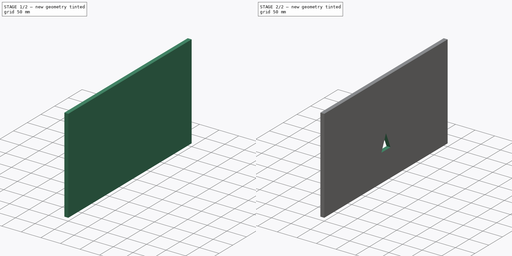
[diagram: build sequence overview — one tinted view per stage of 2, left to right]
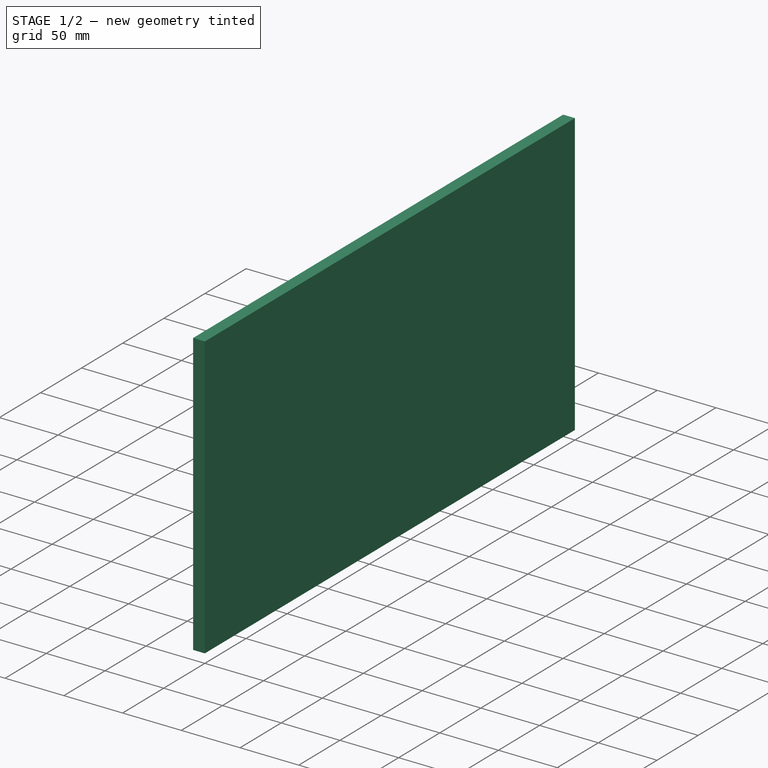
[diagram: stage 1 of 2 — iso view after this stage's code; geometry added in this stage tinted green]
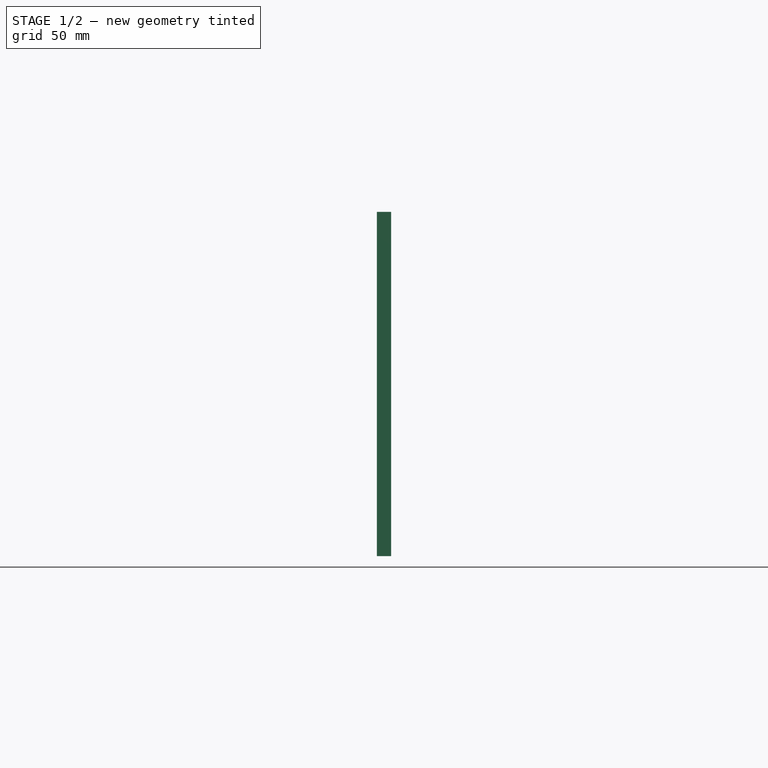
[diagram: stage 1 of 2 — front view after this stage's code; geometry added in this stage tinted green]
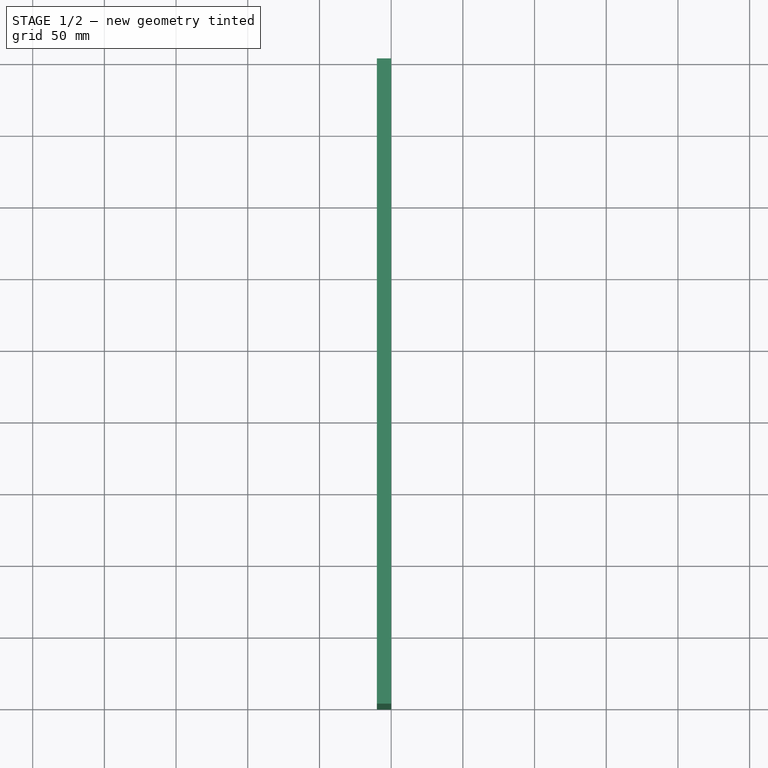
[diagram: stage 1 of 2 — top view after this stage's code; geometry added in this stage tinted green]
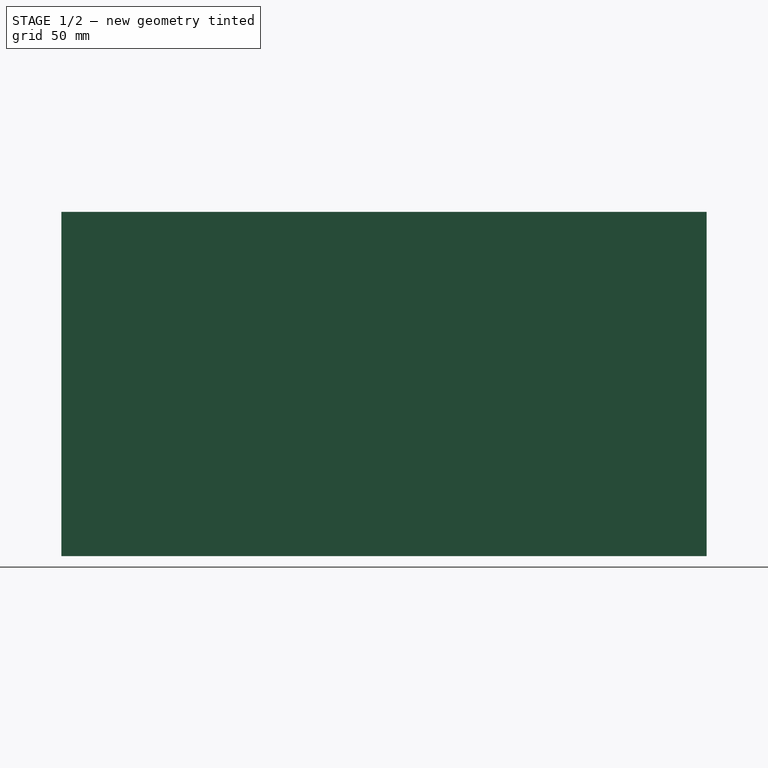
[diagram: stage 1 of 2 — right view after this stage's code; geometry added in this stage tinted green]
FCSTD DOCUMENT  (FreeCAD 0.19R24291 (Git))
Label: 500_Front_YZ_Flap
License: All rights reserved
LicenseURL: http://en.wikipedia.org/wiki/All_rights_reserved
objects: Sketcher::SketchObject×2, Spreadsheet::Sheet×1, PartDesign::Pad×1, PartDesign::Pocket×1, PartDesign::Body×1
note: 7 computed .brp shape members not serialized (recipe doc carries the construction recipe); baked Part::Feature solids carry a one-line shape summary decoded from their .brp

FEATURE [Sketcher::SketchObject] Sketch
  FullyConstrained = true
  MapMode = 4
  Placement = pos=(0,0,0) rot=(0.57735,0.57735,0.57735;2.0944rad)
  Support = -> [XY_Plane]
  expr: Constraints[5] = Spreadsheet.nZ
  expr: Constraints[6] = Spreadsheet.nY
  sketch-geometry (5):
    g0: LineSegment StartX=0 StartY=0 StartZ=0 EndX=0 EndY=240 EndZ=0
    g1: LineSegment StartX=450 StartY=0 StartZ=0 EndX=450 EndY=240 EndZ=0
    g2: LineSegment StartX=450 StartY=240 StartZ=0 EndX=0 EndY=240 EndZ=0
    g3: LineSegment StartX=225 StartY=0 StartZ=0 EndX=0 EndY=0 EndZ=0
    g4: LineSegment StartX=450 StartY=0 StartZ=0 EndX=225 EndY=0 EndZ=0
  constraints (14):
    c: Vertical(g0)
    c: Vertical(g1)
    c: Coincident(g2,g1)
    c: Coincident(g2,g0)
    c: Horizontal(g2)
    c: DistanceY(g1,g1) = 240
    c: DistanceX(g2,g2) = 450
    c: Coincident(g3,g0)
    c: Coincident(g4,g1)
    c: Horizontal(g4)
    c: Equal(g3,g4)
    c: Coincident(g4,g3)
    c: Horizontal(g3)
    c: Coincident(g0,g-1)
FEATURE [Spreadsheet::Sheet] Spreadsheet  label="xls"
  cells = B7=KEYBOARD FRONT; B8=Width; C8=nY; D8(nY)=450; B9=Height; C9=nZ; D9(nZ)=240; E9=F(T); B10=Thickness; C10=nT; D10(nT)=10
FEATURE [PartDesign::Pad] Pad
  AllowMultiFace = false
  Direction = (1,1,1)
  Length = 10
  Length2 = 100
  Profile = -> Sketch
  Reversed = true
  Type = 0
  expr: Length = Spreadsheet.nT
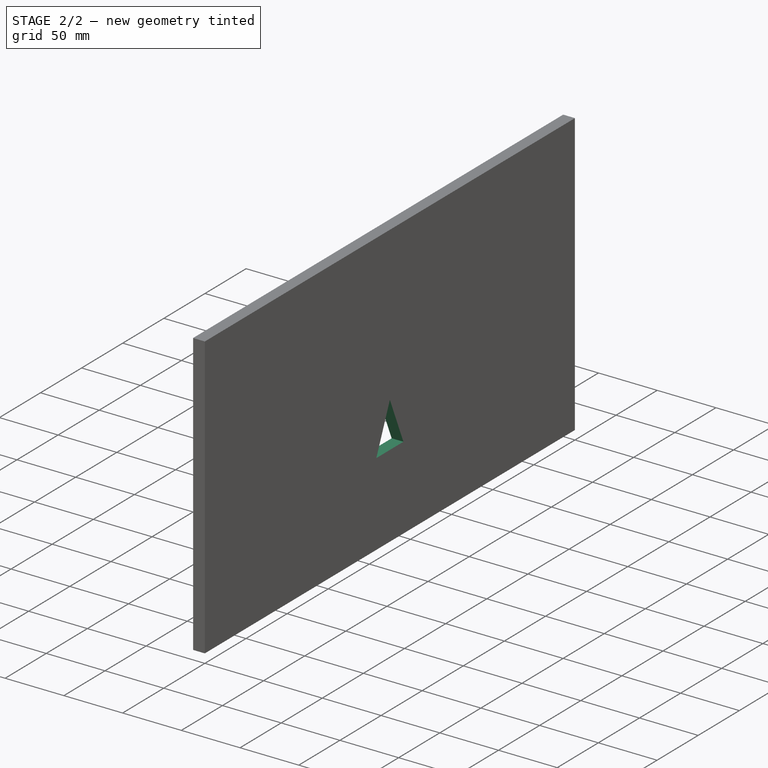
[diagram: stage 2 of 2 — iso view after this stage's code; geometry added in this stage tinted green]
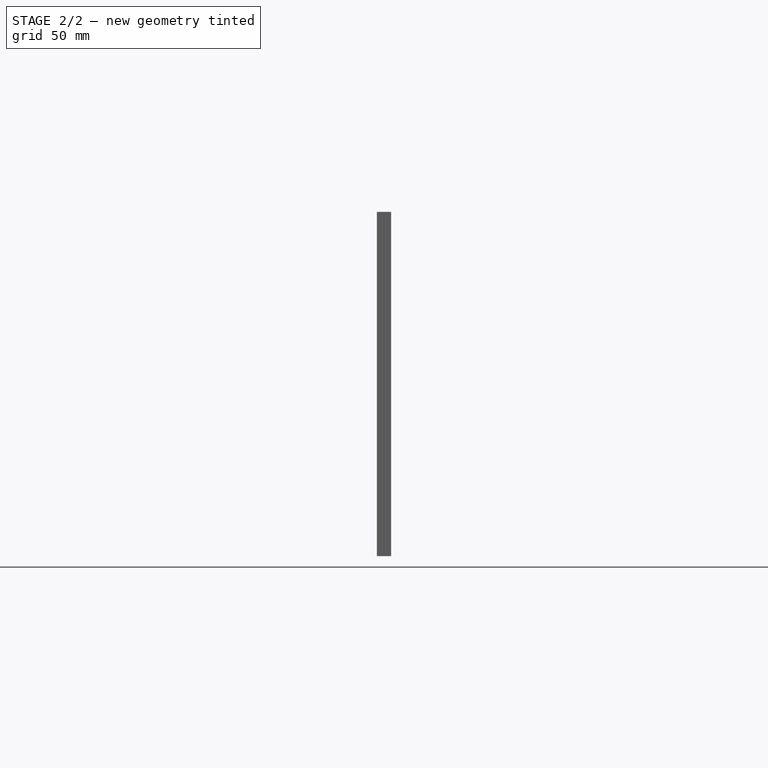
[diagram: stage 2 of 2 — front view after this stage's code; geometry added in this stage tinted green]
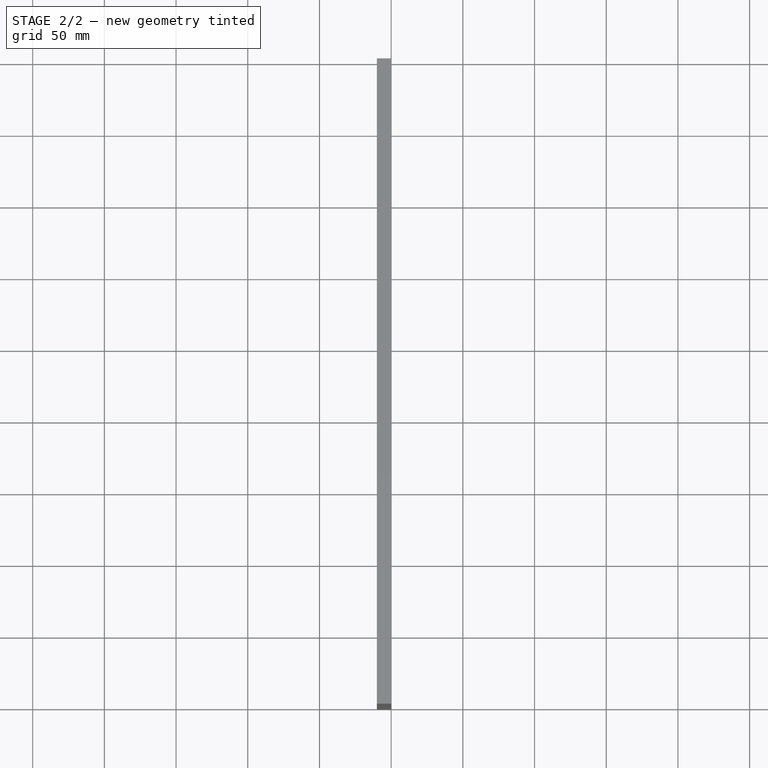
[diagram: stage 2 of 2 — top view after this stage's code; geometry added in this stage tinted green]
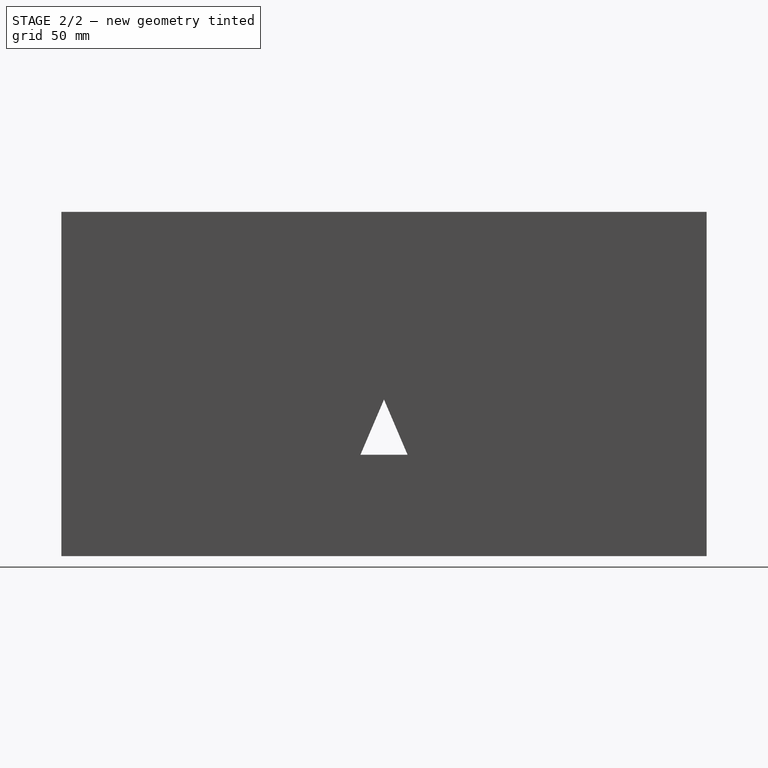
[diagram: stage 2 of 2 — right view after this stage's code; geometry added in this stage tinted green]
FEATURE [Sketcher::SketchObject] Sketch001
  ExternalGeometry = -> [Pad]
  FullyConstrained = false
  MapMode = 5
  Placement = pos=(0,0,0) rot=(0.57735,0.57735,0.57735;2.0944rad)
  Support = -> [YZ_Plane]
  sketch-geometry (5):
    g0: LineSegment StartX=225 StartY=2.66467e-11 StartZ=0 EndX=225 EndY=70.6211 EndZ=0
    g1: LineSegment StartX=225 StartY=70.6211 StartZ=0 EndX=208.541 EndY=70.6211 EndZ=0
    g2: LineSegment StartX=208.541 StartY=70.6211 StartZ=0 EndX=225 EndY=109.167 EndZ=0
    g3: LineSegment StartX=225 StartY=109.167 StartZ=0 EndX=241.459 EndY=70.6211 EndZ=0
    g4: LineSegment StartX=241.459 StartY=70.6211 StartZ=0 EndX=225 EndY=70.6211 EndZ=0
  constraints (13):
    c: Coincident(g0,g-6)
    c: Vertical(g0)
    c: Coincident(g1,g0)
    c: Coincident(g2,g1)
    c: Coincident(g3,g2)
    c: Coincident(g4,g3)
    c: Horizontal(g4)
    c: Equal(g2,g3)
    c: Equal(g4,g1)
    c: Coincident(g4,g0)
    c: Horizontal(g1,g3)
    c: DistanceY(g-3,g-3) = 240
    c: DistanceX(g-4,g-3) = 450
FEATURE [PartDesign::Pocket] Pocket
  BaseFeature = -> Pad
  Length = 5
  Length2 = 100
  Profile = -> Sketch001
  Type = 1
FEATURE [PartDesign::Body] Body
  Group = -> [Sketch,Pad,Sketch001,Pocket]
  Origin = -> Origin
  Tip = -> Pocket
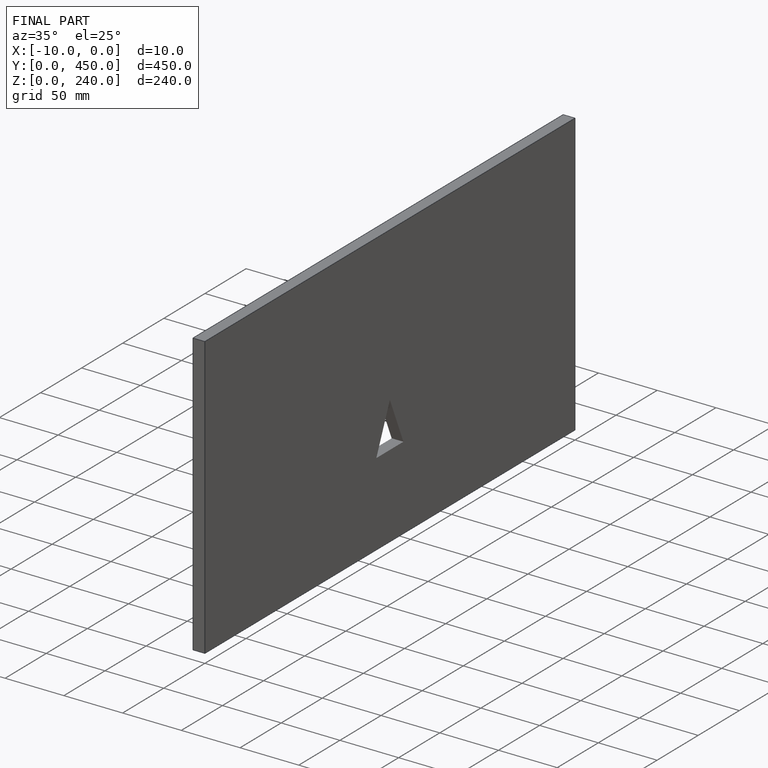
[diagram: finished part — iso view with bounding-box wireframe]
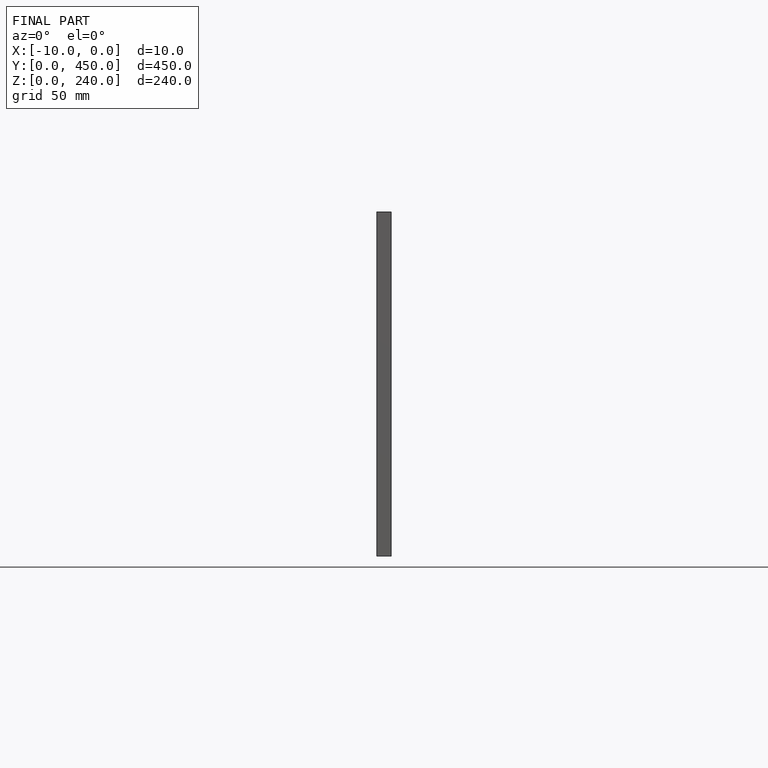
[diagram: finished part — front view with bounding-box wireframe]
